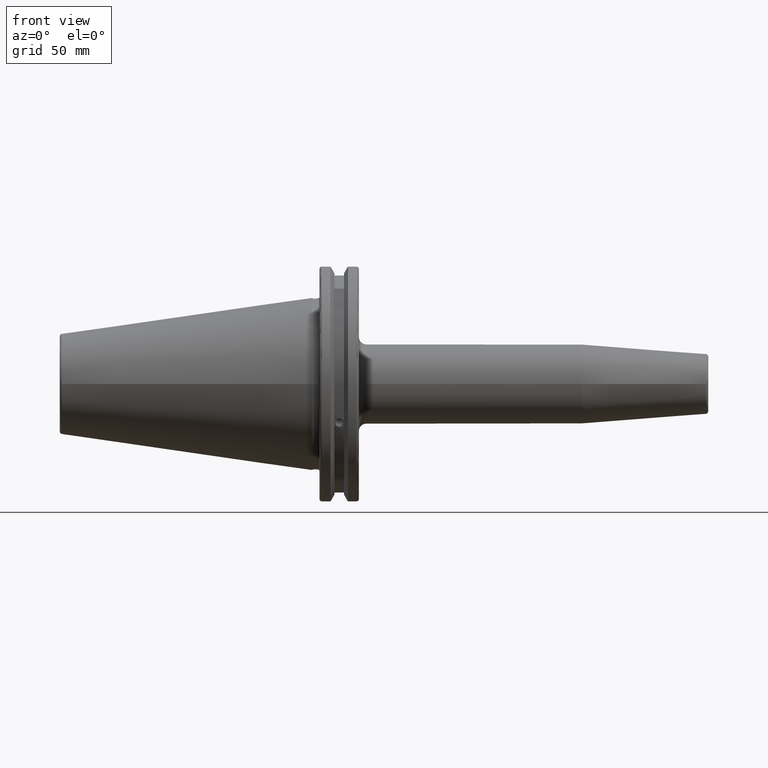
[diagram: clean part render]
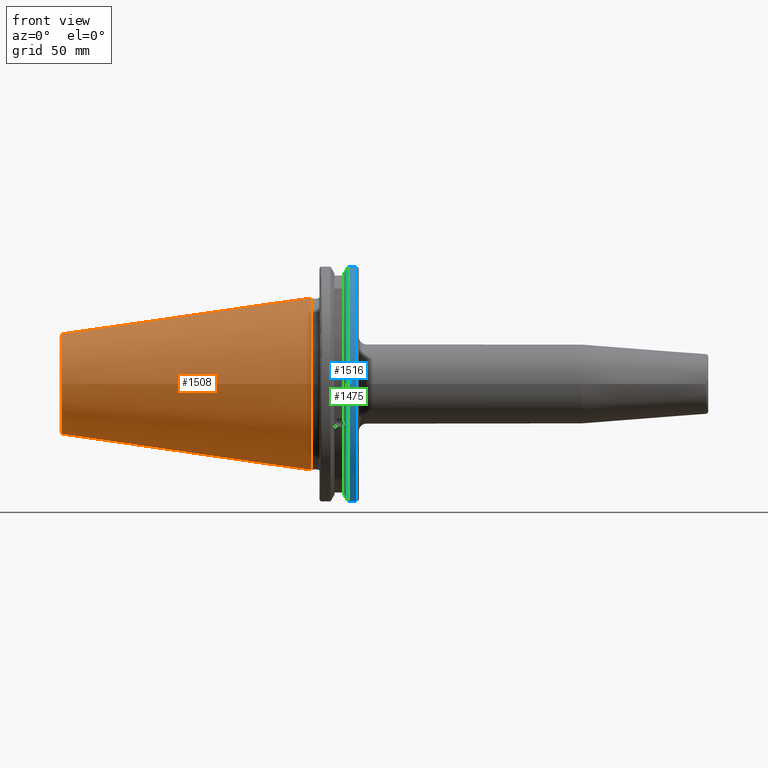
[diagram: same view with three faces highlighted in distinct colors, each labeled with its STEP entity id]
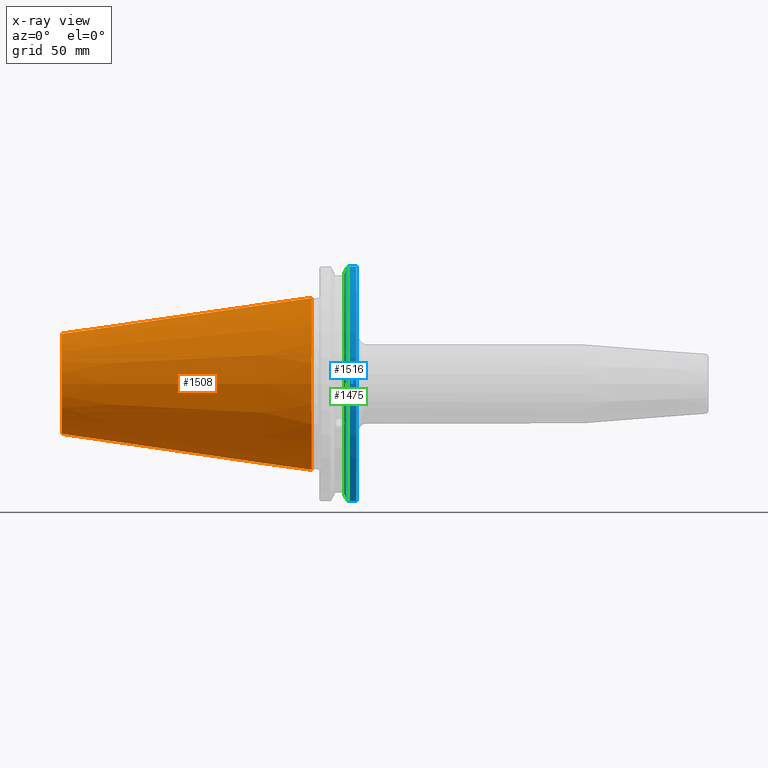
[diagram: x-ray of the same camera — body ghosted, the three highlighted faces saturated]
A machine part, front view with three faces highlighted in distinct colors.
The next image is the same camera in x-ray (body ghosted, the three faces saturated) — at least one of them is partly hidden behind the body in this view.
Their STEP definitions:

[orange] entity #1508 — the highlighted conical surface has half-angle 8.297 deg.
#78=CONICAL_SURFACE('',#1683,27.5166666666666,0.14481249823894);
#156=LINE('',#3004,#248);
#248=VECTOR('',#2048,27.5166666666666);
#409=FACE_OUTER_BOUND('',#513,.T.);
#513=EDGE_LOOP('',(#1310,#1311,#1312,#1313,#1314));
#603=CIRCLE('',#1677,20.233121911427);
#604=CIRCLE('',#1678,20.233121911427);
#608=CIRCLE('',#1684,34.925);
#755=VERTEX_POINT('',#2991);
#756=VERTEX_POINT('',#2992);
#759=VERTEX_POINT('',#3002);
#955=EDGE_CURVE('',#755,#756,#603,.T.);
#956=EDGE_CURVE('',#756,#755,#604,.T.);
#960=EDGE_CURVE('',#759,#759,#608,.T.);
#961=EDGE_CURVE('',#759,#756,#156,.T.);
#1310=ORIENTED_EDGE('',*,*,#960,.F.);
#1311=ORIENTED_EDGE('',*,*,#961,.T.);
#1312=ORIENTED_EDGE('',*,*,#955,.F.);
#1313=ORIENTED_EDGE('',*,*,#956,.F.);
#1314=ORIENTED_EDGE('',*,*,#961,.F.);
#1508=ADVANCED_FACE('',(#409),#78,.T.);
#1677=AXIS2_PLACEMENT_3D('',#2993,#2032,#2033);
#1678=AXIS2_PLACEMENT_3D('',#2994,#2034,#2035);
#1683=AXIS2_PLACEMENT_3D('',#3001,#2044,#2045);
#1684=AXIS2_PLACEMENT_3D('',#3003,#2046,#2047);
#2032=DIRECTION('center_axis',(-1.,0.,0.));
#2033=DIRECTION('ref_axis',(0.,-1.,3.06161699786838E-17));
#2034=DIRECTION('center_axis',(-1.,0.,0.));
#2035=DIRECTION('ref_axis',(0.,-1.,3.06161699786838E-17));
#2044=DIRECTION('center_axis',(1.,0.,0.));
#2045=DIRECTION('ref_axis',(0.,1.,0.));
#2046=DIRECTION('center_axis',(1.,0.,0.));
#2047=DIRECTION('ref_axis',(0.,0.,-1.));
#2048=DIRECTION('',(-0.989532981063281,0.144306893071729,1.76724974695192E-17));
#2991=CARTESIAN_POINT('',(-100.744306893072,-2.47784279855872E-15,20.233121911427));
#2992=CARTESIAN_POINT('',(-100.744306893072,-20.233121911427,-2.47784279855872E-15));
#2993=CARTESIAN_POINT('Origin',(-100.744306893072,0.,-3.09730349819841E-15));
#2994=CARTESIAN_POINT('Origin',(-100.744306893072,0.,-3.09730349819841E-15));
#3001=CARTESIAN_POINT('Origin',(-50.8,0.,0.));
#3002=CARTESIAN_POINT('',(-8.88178419700125E-15,-34.925,-4.27707894602213E-15));
#3003=CARTESIAN_POINT('Origin',(0.,0.,0.));
#3004=CARTESIAN_POINT('',(-50.8,-27.5166666666666,-3.3698197756538E-15));

[blue] entity #1516 — the highlighted cylindrical surface (partial cylindrical patch) has radius 49.2125 mm, axis along (1, 0, 0).
#167=LINE('',#3029,#259);
#168=LINE('',#3031,#260);
#259=VECTOR('',#2073,10.);
#260=VECTOR('',#2076,10.);
#288=CYLINDRICAL_SURFACE('',#1692,49.2125);
#417=FACE_OUTER_BOUND('',#521,.T.);
#521=EDGE_LOOP('',(#1351,#1352,#1353,#1354));
#575=CIRCLE('',#1617,49.2125);
#599=CIRCLE('',#1664,49.2125);
#678=VERTEX_POINT('',#2513);
#679=VERTEX_POINT('',#2517);
#739=VERTEX_POINT('',#2872);
#740=VERTEX_POINT('',#2881);
#846=EDGE_CURVE('',#679,#678,#575,.T.);
#927=EDGE_CURVE('',#739,#740,#599,.T.);
#973=EDGE_CURVE('',#740,#678,#167,.T.);
#974=EDGE_CURVE('',#679,#739,#168,.T.);
#1351=ORIENTED_EDGE('',*,*,#927,.F.);
#1352=ORIENTED_EDGE('',*,*,#974,.F.);
#1353=ORIENTED_EDGE('',*,*,#846,.T.);
#1354=ORIENTED_EDGE('',*,*,#973,.F.);
#1516=ADVANCED_FACE('',(#417),#288,.T.);
#1617=AXIS2_PLACEMENT_3D('',#2518,#1869,#1870);
#1664=AXIS2_PLACEMENT_3D('',#2882,#1994,#1995);
#1692=AXIS2_PLACEMENT_3D('',#3030,#2074,#2075);
#1869=DIRECTION('center_axis',(1.,0.,0.));
#1870=DIRECTION('ref_axis',(0.,0.,-1.));
#1994=DIRECTION('center_axis',(1.,0.,0.));
#1995=DIRECTION('ref_axis',(0.,-1.,1.60812264967664E-16));
#2073=DIRECTION('',(-1.,0.,0.));
#2074=DIRECTION('center_axis',(1.,0.,0.));
#2075=DIRECTION('ref_axis',(0.,-1.,1.22464679914735E-16));
#2076=DIRECTION('',(1.,0.,0.));
#2513=CARTESIAN_POINT('',(14.6602090340487,-13.4317035994433,-47.3440544806494));
#2517=CARTESIAN_POINT('',(14.6602090340487,-13.4317035994433,47.3440544806494));
#2518=CARTESIAN_POINT('Origin',(14.6602090340487,0.,0.));
#2872=CARTESIAN_POINT('',(18.05,-13.4317035994433,47.3440544806494));
#2881=CARTESIAN_POINT('',(18.05,-13.4317035994433,-47.3440544806494));
#2882=CARTESIAN_POINT('Origin',(18.05,0.,0.));
#3029=CARTESIAN_POINT('',(16.8551045170244,-13.4317035994433,-47.3440544806494));
#3030=CARTESIAN_POINT('Origin',(16.8551045170244,0.,0.));
#3031=CARTESIAN_POINT('',(16.8551045170244,-13.4317035994433,47.3440544806494));

[green] entity #1475 — the highlighted conical surface has half-angle 60 deg.
#15=(
BOUNDED_CURVE()
B_SPLINE_CURVE(2,(#2510,#2511,#2512),.UNSPECIFIED.,.F.,.F.)
B_SPLINE_CURVE_WITH_KNOTS((3,3),(0.,0.275823910673374),.UNSPECIFIED.)
CURVE()
GEOMETRIC_REPRESENTATION_ITEM()
RATIONAL_B_SPLINE_CURVE((1.,1.00038235574978,1.00012873636953))
REPRESENTATION_ITEM('')
);
#16=(
BOUNDED_CURVE()
B_SPLINE_CURVE(2,(#2514,#2515,#2516),.UNSPECIFIED.,.F.,.F.)
B_SPLINE_CURVE_WITH_KNOTS((3,3),(0.,0.0648240472896156),.UNSPECIFIED.)
CURVE()
GEOMETRIC_REPRESENTATION_ITEM()
RATIONAL_B_SPLINE_CURVE((1.,1.00011477674884,1.00019140646027))
REPRESENTATION_ITEM('')
);
#17=(
BOUNDED_CURVE()
B_SPLINE_CURVE(2,(#2520,#2521,#2522),.UNSPECIFIED.,.F.,.F.)
B_SPLINE_CURVE_WITH_KNOTS((3,3),(0.325260944932494,0.3900849922222),
 .UNSPECIFIED.)
CURVE()
GEOMETRIC_REPRESENTATION_ITEM()
RATIONAL_B_SPLINE_CURVE((1.00019140645961,1.00011477674844,1.))
REPRESENTATION_ITEM('')
);
#18=(
BOUNDED_CURVE()
B_SPLINE_CURVE(2,(#2524,#2525,#2526),.UNSPECIFIED.,.F.,.F.)
B_SPLINE_CURVE_WITH_KNOTS((3,3),(0.0558332664531015,0.331657177124503),
 .UNSPECIFIED.)
CURVE()
GEOMETRIC_REPRESENTATION_ITEM()
RATIONAL_B_SPLINE_CURVE((1.00012873636668,1.00038235574129,1.))
REPRESENTATION_ITEM('')
);
#41=B_SPLINE_CURVE_WITH_KNOTS('',3,(#2419,#2420,#2421,#2422,#2423,#2424,
#2425,#2426),.UNSPECIFIED.,.F.,.F.,(4,2,2,4),(0.42671286835872,0.441644498666905,
0.480313313223129,0.518982127779353),.UNSPECIFIED.);
#45=B_SPLINE_CURVE_WITH_KNOTS('',3,(#2481,#2482,#2483,#2484,#2485,#2486,
#2487,#2488),.UNSPECIFIED.,.F.,.F.,(4,2,2,4),(0.518982127779353,0.557650942335576,
0.5963197568918,0.611251387199985),.UNSPECIFIED.);
#75=CONICAL_SURFACE('',#1615,47.8172386482472,1.0471975511966);
#376=FACE_OUTER_BOUND('',#472,.T.);
#472=EDGE_LOOP('',(#1115,#1116,#1117,#1118,#1119,#1120,#1121,#1122,#1123));
#574=CIRCLE('',#1616,46.4219772964944);
#575=CIRCLE('',#1617,49.2125);
#576=CIRCLE('',#1618,46.4219772964944);
#662=VERTEX_POINT('',#2416);
#663=VERTEX_POINT('',#2418);
#670=VERTEX_POINT('',#2479);
#676=VERTEX_POINT('',#2507);
#677=VERTEX_POINT('',#2509);
#678=VERTEX_POINT('',#2513);
#679=VERTEX_POINT('',#2517);
#680=VERTEX_POINT('',#2519);
#681=VERTEX_POINT('',#2523);
#827=EDGE_CURVE('',#663,#662,#41,.T.);
#835=EDGE_CURVE('',#662,#670,#45,.T.);
#843=EDGE_CURVE('',#670,#676,#574,.T.);
#844=EDGE_CURVE('',#676,#677,#15,.T.);
#845=EDGE_CURVE('',#678,#677,#16,.T.);
#846=EDGE_CURVE('',#679,#678,#575,.T.);
#847=EDGE_CURVE('',#680,#679,#17,.T.);
#848=EDGE_CURVE('',#680,#681,#18,.T.);
#849=EDGE_CURVE('',#681,#663,#576,.T.);
#1115=ORIENTED_EDGE('',*,*,#827,.T.);
#1116=ORIENTED_EDGE('',*,*,#835,.T.);
#1117=ORIENTED_EDGE('',*,*,#843,.T.);
#1118=ORIENTED_EDGE('',*,*,#844,.T.);
#1119=ORIENTED_EDGE('',*,*,#845,.F.);
#1120=ORIENTED_EDGE('',*,*,#846,.F.);
#1121=ORIENTED_EDGE('',*,*,#847,.F.);
#1122=ORIENTED_EDGE('',*,*,#848,.T.);
#1123=ORIENTED_EDGE('',*,*,#849,.T.);
#1475=ADVANCED_FACE('',(#376),#75,.T.);
#1615=AXIS2_PLACEMENT_3D('',#2506,#1865,#1866);
#1616=AXIS2_PLACEMENT_3D('',#2508,#1867,#1868);
#1617=AXIS2_PLACEMENT_3D('',#2518,#1869,#1870);
#1618=AXIS2_PLACEMENT_3D('',#2527,#1871,#1872);
#1865=DIRECTION('center_axis',(1.,0.,0.));
#1866=DIRECTION('ref_axis',(0.,-1.,-1.22464679914735E-16));
#1867=DIRECTION('center_axis',(1.,0.,0.));
#1868=DIRECTION('ref_axis',(0.,0.,-1.));
#1869=DIRECTION('center_axis',(1.,0.,0.));
#1870=DIRECTION('ref_axis',(0.,0.,-1.));
#1871=DIRECTION('center_axis',(1.,0.,0.));
#1872=DIRECTION('ref_axis',(0.,0.,-1.));
#2416=CARTESIAN_POINT('',(13.2341,-43.923494649906,-15.9868446375166));
#2418=CARTESIAN_POINT('',(13.0491,-43.9096390749305,-15.0646464421033));
#2419=CARTESIAN_POINT('Ctrl Pts',(13.0491,-43.9096390749305,-15.0646464421033));
#2420=CARTESIAN_POINT('Ctrl Pts',(13.0660815609661,-43.9250360001461,-15.1104047527575));
#2421=CARTESIAN_POINT('Ctrl Pts',(13.0821132459668,-43.9385582852181,-15.1564111356409));
#2422=CARTESIAN_POINT('Ctrl Pts',(13.1358132615496,-43.9797830409459,-15.3217566390708));
#2423=CARTESIAN_POINT('Ctrl Pts',(13.1719838933644,-43.9989016655819,-15.4570249042868));
#2424=CARTESIAN_POINT('Ctrl Pts',(13.2212913174802,-43.9931221605126,-15.7289849146254));
#2425=CARTESIAN_POINT('Ctrl Pts',(13.2341,-43.9675796948952,-15.8657219718732));
#2426=CARTESIAN_POINT('Ctrl Pts',(13.2341,-43.923494649906,-15.9868446375166));
#2479=CARTESIAN_POINT('',(13.0491,-43.3201030900029,-16.6843832486479));
#2481=CARTESIAN_POINT('Ctrl Pts',(13.2341,-43.923494649906,-15.9868446375166));
#2482=CARTESIAN_POINT('Ctrl Pts',(13.2341,-43.8794096049169,-16.10796730316));
#2483=CARTESIAN_POINT('Ctrl Pts',(13.2212913174802,-43.8110833825827,-16.2291323464527));
#2484=CARTESIAN_POINT('Ctrl Pts',(13.1719838933644,-43.6406982153492,-16.441180795372));
#2485=CARTESIAN_POINT('Ctrl Pts',(13.1358132615496,-43.5391037343221,-16.5325130832406));
#2486=CARTESIAN_POINT('Ctrl Pts',(13.0821132459668,-43.4012416983557,-16.6326763251437));
#2487=CARTESIAN_POINT('Ctrl Pts',(13.0660815609661,-43.3613106941341,-16.6592273018006));
#2488=CARTESIAN_POINT('Ctrl Pts',(13.0491,-43.3201030900029,-16.6843832486479));
#2506=CARTESIAN_POINT('Origin',(13.8546545170244,0.,0.));
#2507=CARTESIAN_POINT('',(13.0491,-12.95,-44.5791147973604));
#2508=CARTESIAN_POINT('Origin',(13.0491,0.,0.));
#2509=CARTESIAN_POINT('',(14.3818103943757,-12.95,-46.9780755322917));
#2510=CARTESIAN_POINT('Ctrl Pts',(13.0491,-12.95,-44.5791147973604));
#2511=CARTESIAN_POINT('Ctrl Pts',(13.697995509466,-12.95,-45.749496680259));
#2512=CARTESIAN_POINT('Ctrl Pts',(14.3818103943757,-12.95,-46.9780755322917));
#2513=CARTESIAN_POINT('',(14.6602090340487,-13.4317035994433,-47.3440544806494));
#2514=CARTESIAN_POINT('Ctrl Pts',(14.6602090340487,-13.4317035994433,-47.3440544806494));
#2515=CARTESIAN_POINT('Ctrl Pts',(14.5199310333617,-13.1896660169964,-47.1601640966263));
#2516=CARTESIAN_POINT('Ctrl Pts',(14.3818103943757,-12.95,-46.9780755322917));
#2517=CARTESIAN_POINT('',(14.6602090340487,-13.4317035994433,47.3440544806494));
#2518=CARTESIAN_POINT('Origin',(14.6602090340487,0.,0.));
#2519=CARTESIAN_POINT('',(14.3818103943757,-12.95,46.9780755322918));
#2520=CARTESIAN_POINT('Ctrl Pts',(14.3818103943757,-12.95,46.9780755322918));
#2521=CARTESIAN_POINT('Ctrl Pts',(14.5199310333617,-13.1896660169966,47.1601640966264));
#2522=CARTESIAN_POINT('Ctrl Pts',(14.6602090340487,-13.4317035994433,47.3440544806494));
#2523=CARTESIAN_POINT('',(13.0491,-12.95,44.5791147973604));
#2524=CARTESIAN_POINT('Ctrl Pts',(14.3818103943757,-12.95,46.9780755322918));
#2525=CARTESIAN_POINT('Ctrl Pts',(13.6979955094846,-12.95,45.7494966802924));
#2526=CARTESIAN_POINT('Ctrl Pts',(13.0491,-12.95,44.5791147973604));
#2527=CARTESIAN_POINT('Origin',(13.0491,0.,0.));